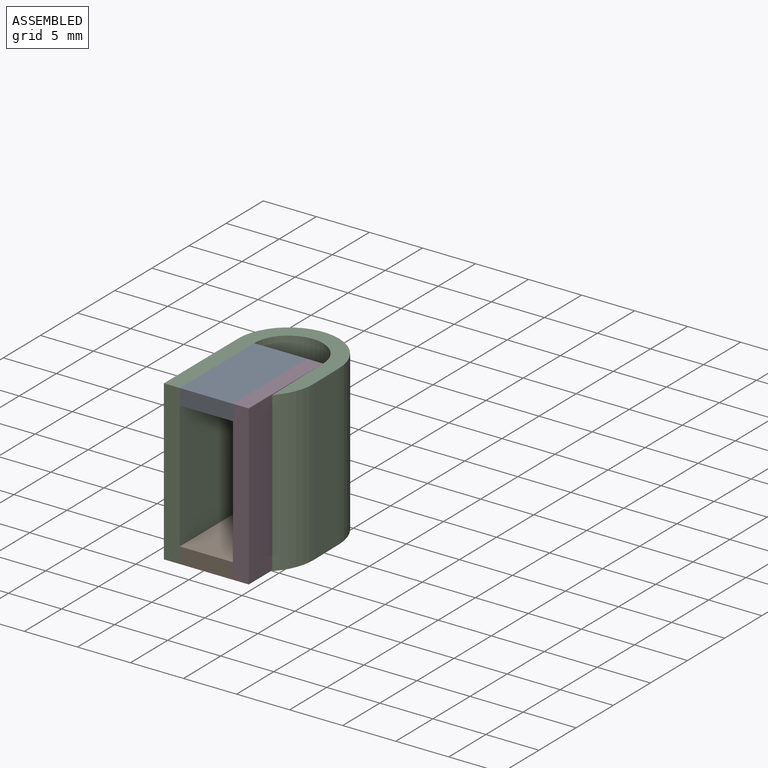
[diagram: assembled view]
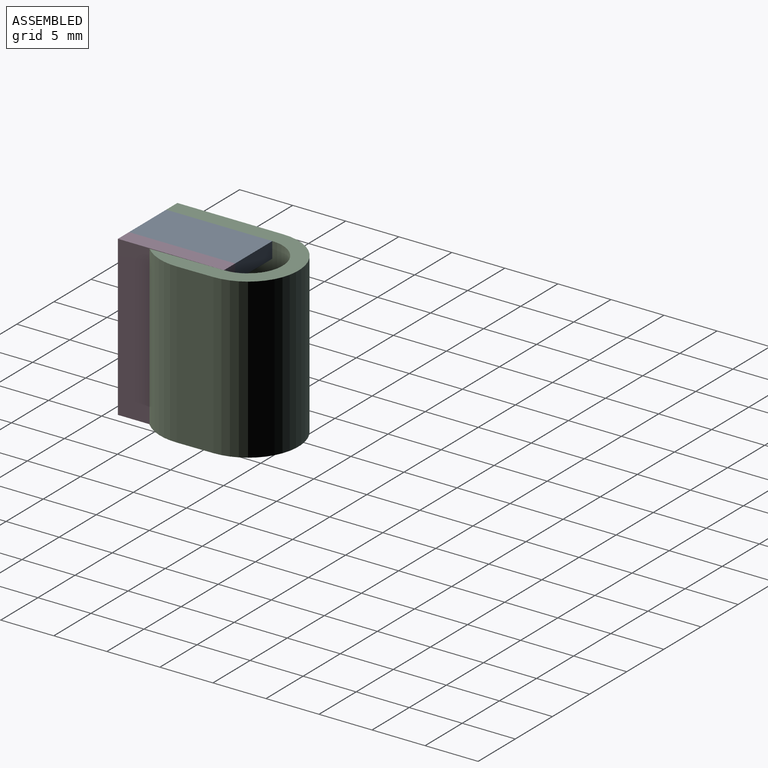
[diagram: assembled view, second angle]
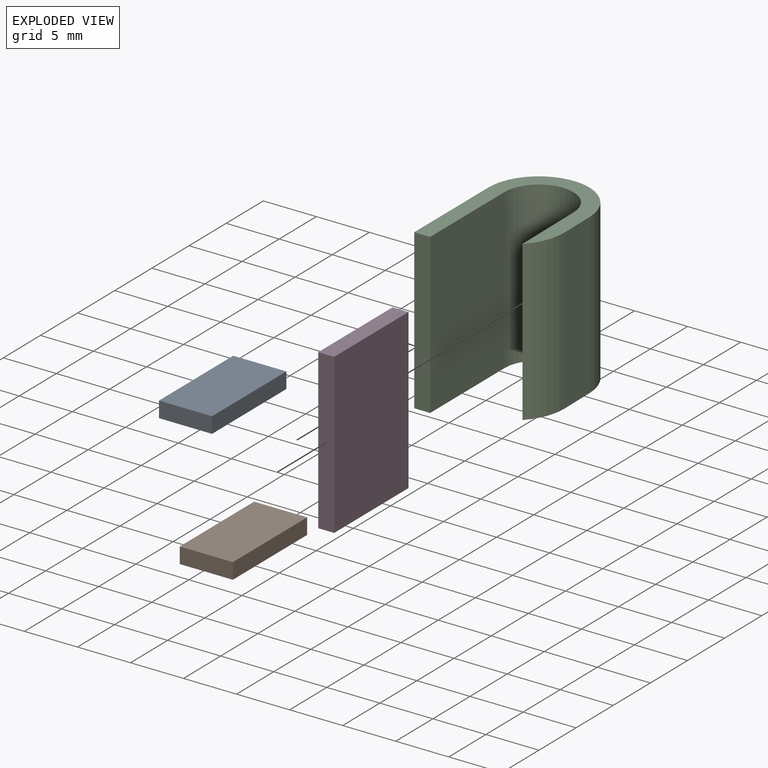
[diagram: exploded view]
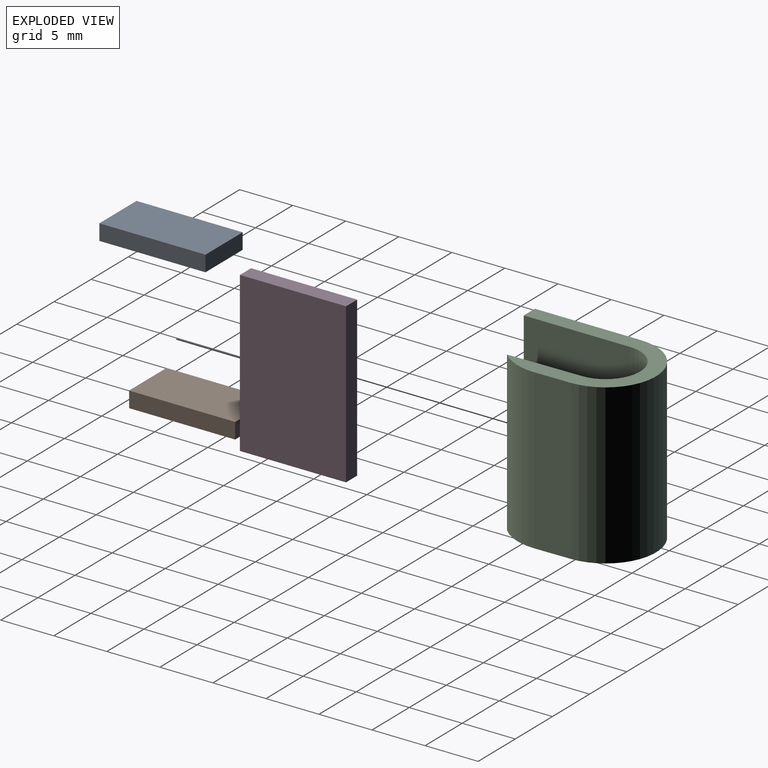
[diagram: exploded view, second angle]
ASSEMBLY  parts=4 mates=3
PART A: 6 faces, bbox 5x10x1.5 mm
  f0: plane 5x1.5mm, normal (0,1,0), area 7.5mm2, adj f1,f3,f4,f5
  f1: plane 10x1.5mm, normal (-1,0,0), area 15mm2, adj f0,f2,f4,f5
  f2: plane 5x1.5mm, normal (0,-1,0), area 7.5mm2, adj f1,f3,f4,f5
  f3: plane 10x1.5mm, normal (1,0,0), area 15mm2, adj f0,f2,f4,f5
  f4: plane 10x5mm, normal (0,0,1), area 50mm2, adj f0,f1,f2,f3
  f5: plane 10x5mm, normal (0,0,-1), area 50mm2, adj f0,f1,f2,f3
PART B: same geometry as A
PART C: 10 faces, bbox 9.5x14.8x15 mm
  f0: plane 15x7mm, normal (-1,-0.01,0), area 105mm2, adj f6,f7,f8,f9
  f1: plane 15x3.43mm, normal (1,0.01,0), area 51.4mm2, adj f2,f7,f8,f9
  f2: cylinder r=4.75mm len=15mm, axis (0,0,-1), area 223mm2, adj f1,f3,f7,f8
  f3: plane 15x10mm, normal (-1,0,0), area 150mm2, adj f2,f4,f7,f8
  f4: plane 15x1.5mm, normal (0,-1,0), area 22.5mm2, adj f3,f5,f7,f8
  f5: plane 15x10mm, normal (1,0,0), area 150mm2, adj f4,f6,f7,f8
  f6: cylinder r=3.25mm len=15mm, axis (0,0,-1), area 152.6mm2, adj f0,f5,f7,f8
  f7: plane 14.75x9.54mm, normal (0,0,1), area 42.6mm2, adj f0,f1,f2,f3,f4,f5,f6,f9
  f8: plane 14.75x9.54mm, normal (0,0,-1), area 42.6mm2, adj f0,f1,f2,f3,f4,f5,f6,f9
  f9: cylinder r=5mm len=15mm, axis (0,0,-1), area 59.7mm2, adj f0,f1,f7,f8
PART D: 6 faces, bbox 15x10x1.5 mm
  f0: plane 10x1.5mm, normal (1,0,0), area 15mm2, adj f1,f3,f4,f5
  f1: plane 15x1.5mm, normal (0,1,0), area 22.5mm2, adj f0,f2,f4,f5
  f2: plane 10x1.5mm, normal (-1,0,0), area 15mm2, adj f1,f3,f4,f5
  f3: plane 15x1.5mm, normal (0,-1,0), area 22.5mm2, adj f0,f2,f4,f5
  f4: plane 15x10mm, normal (0,0,1), area 150mm2, adj f0,f1,f2,f3
  f5: plane 15x10mm, normal (0,0,-1), area 150mm2, adj f0,f1,f2,f3
PLACE A t=(-14.29,-3.66,16.03)mm
PLACE B t=(-14.29,-3.66,2.53)mm
PLACE C t=(-16.79,-8.66,2.53)mm
PLACE D rot(axis=(0.71,0,0.71),180deg) t=(-11.79,-3.66,10.03)mm
MATE fastened C.f4 <-> A.f2  axis (0,1,0) through (-16.79,-8.66,17.53)mm
MATE fastened B.f2 <-> C.f4  axis (0,-1,0) through (-16.79,-8.66,2.53)mm
MATE fastened D.f1 <-> A.f2  axis (0,1,0) through (-11.79,-8.66,17.53)mm
